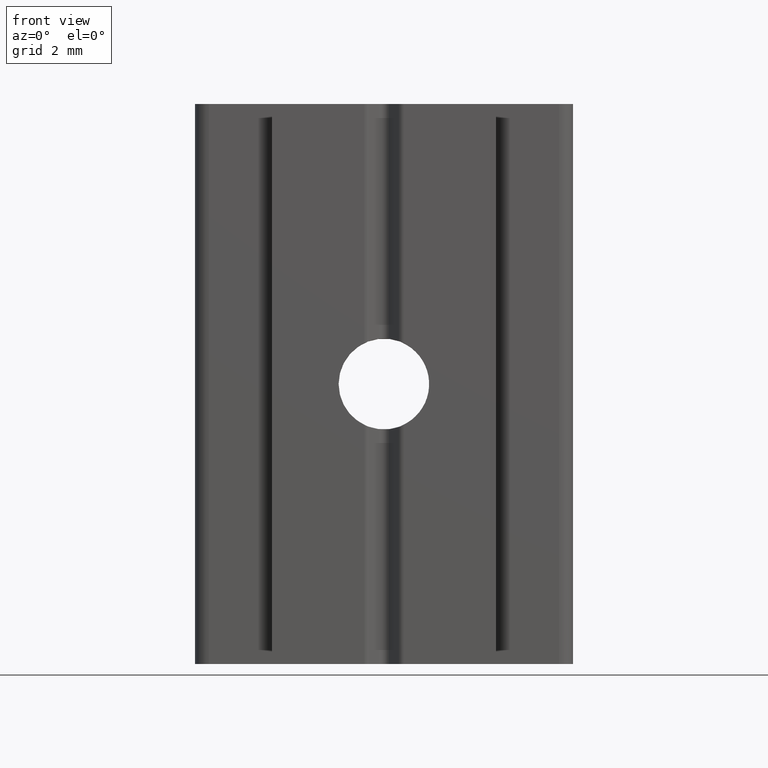
[diagram: clean part render]
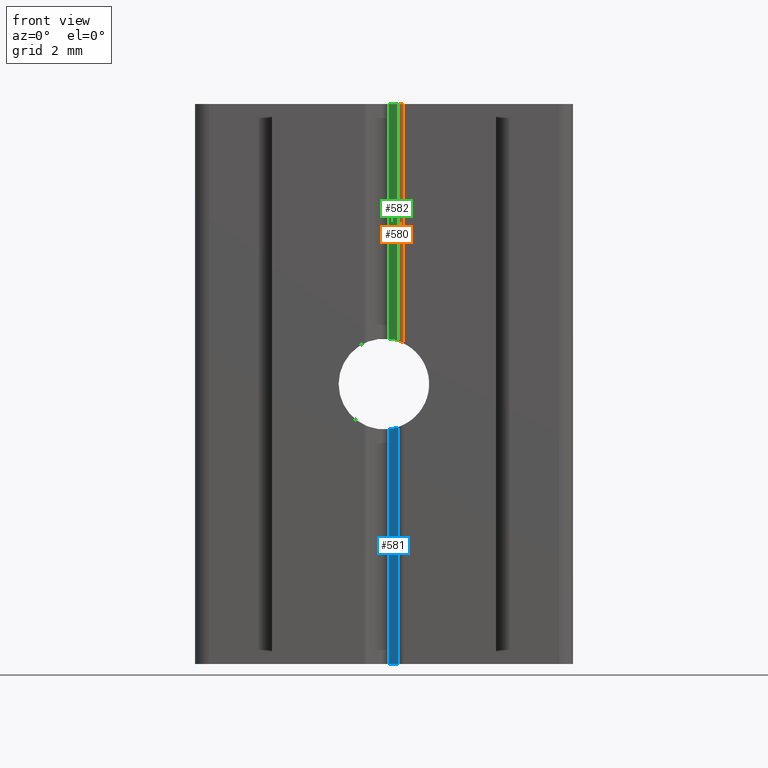
[diagram: same view with three faces highlighted in distinct colors, each labeled with its STEP entity id]
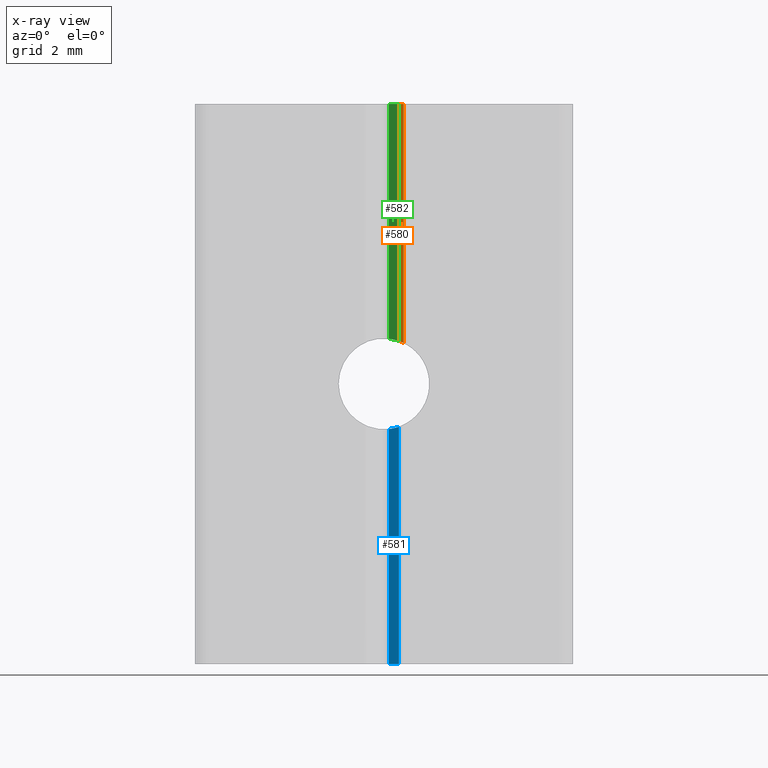
[diagram: x-ray of the same camera — body ghosted, the three highlighted faces saturated]
A machine part, front view with three faces highlighted in distinct colors.
The next image is the same camera in x-ray (body ghosted, the three faces saturated) — at least one of them is partly hidden behind the body in this view.
Their STEP definitions:

[orange] entity #580 — the highlighted cylindrical surface (edge-blend (fillet) strip) has radius 0.25 mm, axis along (0, 0, 1).
#40=FACE_OUTER_BOUND('',#70,.T.);
#70=EDGE_LOOP('',(#427,#428,#429,#430));
#101=B_SPLINE_CURVE_WITH_KNOTS('',3,(#893,#894,#895,#896,#897,#898),
 .UNSPECIFIED.,.F.,.F.,(4,2,4),(0.0989652227320076,0.108858003163007,0.119083344210719),
 .UNSPECIFIED.);
#111=LINE('',#937,#166);
#118=LINE('',#959,#173);
#166=VECTOR('',#715,10.);
#173=VECTOR('',#740,10.);
#223=CIRCLE('',#644,0.249999999999999);
#246=VERTEX_POINT('',#890);
#247=VERTEX_POINT('',#892);
#257=VERTEX_POINT('',#935);
#263=VERTEX_POINT('',#957);
#306=EDGE_CURVE('',#247,#246,#101,.T.);
#319=EDGE_CURVE('',#257,#246,#111,.T.);
#329=EDGE_CURVE('',#263,#257,#223,.T.);
#330=EDGE_CURVE('',#247,#263,#118,.T.);
#427=ORIENTED_EDGE('',*,*,#306,.T.);
#428=ORIENTED_EDGE('',*,*,#319,.F.);
#429=ORIENTED_EDGE('',*,*,#329,.F.);
#430=ORIENTED_EDGE('',*,*,#330,.F.);
#565=CYLINDRICAL_SURFACE('',#643,0.249999999999999);
#580=ADVANCED_FACE('',(#40),#565,.T.);
#643=AXIS2_PLACEMENT_3D('',#956,#736,#737);
#644=AXIS2_PLACEMENT_3D('',#958,#738,#739);
#715=DIRECTION('',(0.,0.,-1.));
#736=DIRECTION('center_axis',(0.,0.,1.));
#737=DIRECTION('ref_axis',(0.707106781186548,0.707106781186547,0.));
#738=DIRECTION('center_axis',(0.,0.,1.));
#739=DIRECTION('ref_axis',(0.707106781186548,0.707106781186547,0.));
#740=DIRECTION('',(0.,0.,1.));
#890=CARTESIAN_POINT('',(0.707106781186547,-3.,1.45864354795817));
#892=CARTESIAN_POINT('',(0.530330085889911,-2.92677669529664,1.53179339337915));
#893=CARTESIAN_POINT('Ctrl Pts',(0.530330085889911,-2.92677669529664,1.53179339337915));
#894=CARTESIAN_POINT('Ctrl Pts',(0.553066583367899,-2.94951319277463,1.52392167339886));
#895=CARTESIAN_POINT('Ctrl Pts',(0.581354058812105,-2.96854348170025,1.51351881688314));
#896=CARTESIAN_POINT('Ctrl Pts',(0.642979608756567,-2.99400039761083,1.48840927695242));
#897=CARTESIAN_POINT('Ctrl Pts',(0.676436150413532,-3.,1.47351175275929));
#898=CARTESIAN_POINT('Ctrl Pts',(0.707106781186547,-3.,1.45864354795817));
#935=CARTESIAN_POINT('',(0.707106781186547,-3.,10.));
#937=CARTESIAN_POINT('',(0.707106781186547,-3.,0.));
#956=CARTESIAN_POINT('Origin',(0.707106781186547,-2.75,0.));
#957=CARTESIAN_POINT('',(0.530330085889911,-2.92677669529664,10.));
#958=CARTESIAN_POINT('Origin',(0.707106781186547,-2.75,10.));
#959=CARTESIAN_POINT('',(0.530330085889911,-2.92677669529664,0.));

[blue] entity #581 — the highlighted planar face has unit normal (0.7071, 0.7071, 0).
#18=PLANE('',#645);
#41=FACE_OUTER_BOUND('',#71,.T.);
#71=EDGE_LOOP('',(#431,#432,#433,#434));
#95=ELLIPSE('',#628,2.29244018460679,1.621);
#114=LINE('',#945,#169);
#117=LINE('',#954,#172);
#119=LINE('',#961,#174);
#169=VECTOR('',#724,10.);
#172=VECTOR('',#733,10.);
#174=VECTOR('',#743,10.);
#243=VERTEX_POINT('',#870);
#244=VERTEX_POINT('',#881);
#259=VERTEX_POINT('',#943);
#262=VERTEX_POINT('',#953);
#303=EDGE_CURVE('',#244,#243,#95,.T.);
#323=EDGE_CURVE('',#259,#243,#114,.T.);
#327=EDGE_CURVE('',#262,#244,#117,.T.);
#331=EDGE_CURVE('',#262,#259,#119,.T.);
#431=ORIENTED_EDGE('',*,*,#303,.T.);
#432=ORIENTED_EDGE('',*,*,#323,.F.);
#433=ORIENTED_EDGE('',*,*,#331,.F.);
#434=ORIENTED_EDGE('',*,*,#327,.T.);
#581=ADVANCED_FACE('',(#41),#18,.F.);
#628=AXIS2_PLACEMENT_3D('',#882,#693,#694);
#645=AXIS2_PLACEMENT_3D('',#960,#741,#742);
#693=DIRECTION('center_axis',(0.70710678118655,0.707106781186546,0.));
#694=DIRECTION('ref_axis',(0.707106781186546,-0.707106781186549,0.));
#724=DIRECTION('',(0.,0.,1.));
#733=DIRECTION('',(0.,0.,1.));
#741=DIRECTION('center_axis',(0.70710678118655,0.707106781186546,0.));
#742=DIRECTION('ref_axis',(-0.707106781186545,0.707106781186549,0.));
#743=DIRECTION('',(-0.707106781186545,0.707106781186549,0.));
#870=CARTESIAN_POINT('',(0.176776695296638,-2.57322330470336,-1.61133205764672));
#881=CARTESIAN_POINT('',(0.530330085889911,-2.92677669529664,-1.53179339337915));
#882=CARTESIAN_POINT('Origin',(0.,-2.39644660940672,0.));
#943=CARTESIAN_POINT('',(0.176776695296638,-2.57322330470336,-10.));
#945=CARTESIAN_POINT('',(0.176776695296638,-2.57322330470336,0.));
#953=CARTESIAN_POINT('',(0.530330085889911,-2.92677669529664,-10.));
#954=CARTESIAN_POINT('',(0.530330085889911,-2.92677669529664,0.));
#960=CARTESIAN_POINT('Origin',(0.530330085889911,-2.92677669529664,0.));
#961=CARTESIAN_POINT('',(-0.790466963666722,-1.60597964574,-10.));

[green] entity #582 — the highlighted planar face has unit normal (0.7071, 0.7071, 0).
#19=PLANE('',#646);
#42=FACE_OUTER_BOUND('',#72,.T.);
#72=EDGE_LOOP('',(#435,#436,#437,#438));
#96=ELLIPSE('',#630,2.29244018460679,1.621);
#115=LINE('',#948,#170);
#118=LINE('',#959,#173);
#120=LINE('',#963,#175);
#170=VECTOR('',#727,10.);
#173=VECTOR('',#740,10.);
#175=VECTOR('',#746,10.);
#247=VERTEX_POINT('',#892);
#248=VERTEX_POINT('',#899);
#260=VERTEX_POINT('',#947);
#263=VERTEX_POINT('',#957);
#307=EDGE_CURVE('',#248,#247,#96,.T.);
#324=EDGE_CURVE('',#248,#260,#115,.T.);
#330=EDGE_CURVE('',#247,#263,#118,.T.);
#332=EDGE_CURVE('',#260,#263,#120,.T.);
#435=ORIENTED_EDGE('',*,*,#307,.T.);
#436=ORIENTED_EDGE('',*,*,#330,.T.);
#437=ORIENTED_EDGE('',*,*,#332,.F.);
#438=ORIENTED_EDGE('',*,*,#324,.F.);
#582=ADVANCED_FACE('',(#42),#19,.F.);
#630=AXIS2_PLACEMENT_3D('',#900,#697,#698);
#646=AXIS2_PLACEMENT_3D('',#962,#744,#745);
#697=DIRECTION('center_axis',(0.70710678118655,0.707106781186546,0.));
#698=DIRECTION('ref_axis',(0.707106781186546,-0.707106781186549,0.));
#727=DIRECTION('',(0.,0.,1.));
#740=DIRECTION('',(0.,0.,1.));
#744=DIRECTION('center_axis',(0.70710678118655,0.707106781186546,0.));
#745=DIRECTION('ref_axis',(-0.707106781186545,0.707106781186549,0.));
#746=DIRECTION('',(0.707106781186545,-0.707106781186549,0.));
#892=CARTESIAN_POINT('',(0.530330085889911,-2.92677669529664,1.53179339337915));
#899=CARTESIAN_POINT('',(0.176776695296638,-2.57322330470336,1.61133205764672));
#900=CARTESIAN_POINT('Origin',(0.,-2.39644660940672,0.));
#947=CARTESIAN_POINT('',(0.176776695296638,-2.57322330470336,10.));
#948=CARTESIAN_POINT('',(0.176776695296638,-2.57322330470336,0.));
#957=CARTESIAN_POINT('',(0.530330085889911,-2.92677669529664,10.));
#959=CARTESIAN_POINT('',(0.530330085889911,-2.92677669529664,0.));
#962=CARTESIAN_POINT('Origin',(0.530330085889911,-2.92677669529664,0.));
#963=CARTESIAN_POINT('',(-0.790466963666722,-1.60597964574,10.));